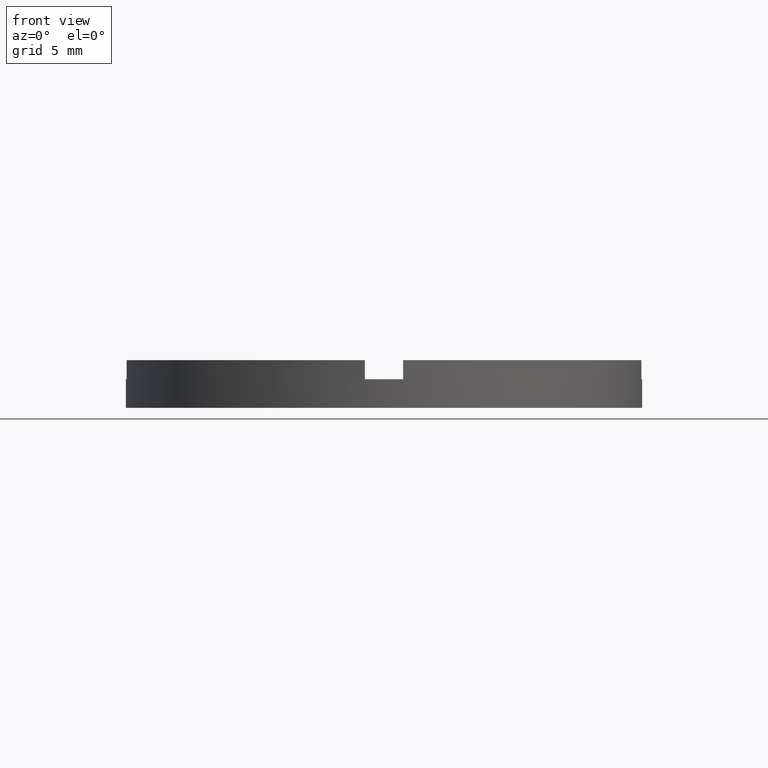
[diagram: clean part render]
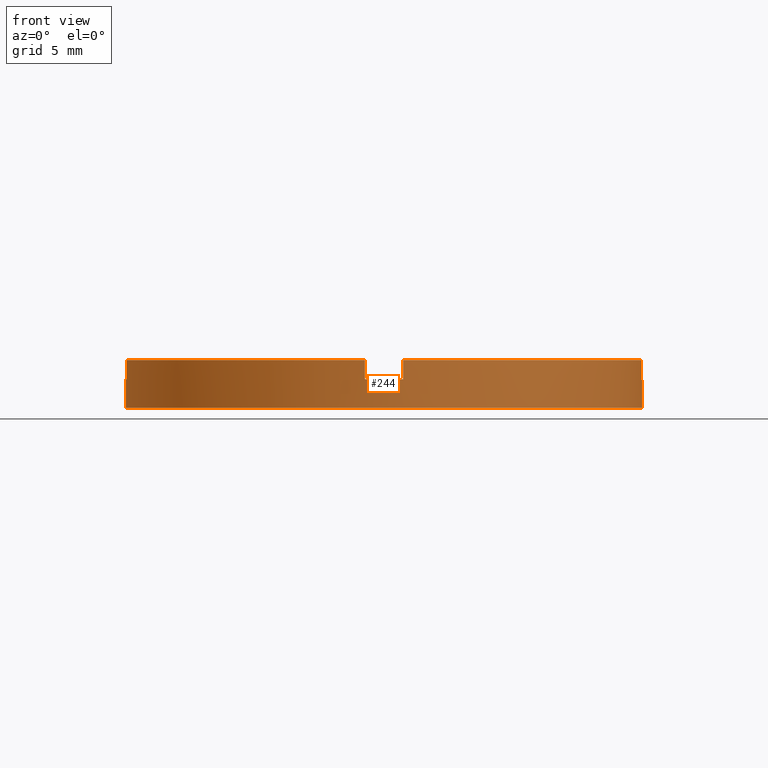
[diagram: same view with one face highlighted and labeled with its STEP entity id]
A machine part, front view. The second image highlights one B-rep face of the part: STEP entity #244.
In plain terms, the highlighted cylindrical surface (partial cylindrical patch) has radius 13.5 mm, axis along (-0, -0, -1).
Its self-contained STEP definition (entity closure, byte-faithful):
#1 = DIRECTION ( 'NONE',  ( -0.000000000000000000, -0.000000000000000000, -1.000000000000000000 ) ) ;
#4 = DIRECTION ( 'NONE',  ( 0.000000000000000000, 0.000000000000000000, 1.000000000000000000 ) ) ;
#9 = FACE_OUTER_BOUND ( 'NONE', #466, .T. ) ;
#12 = AXIS2_PLACEMENT_3D ( 'NONE', #343, #740, #346 ) ;
#24 = AXIS2_PLACEMENT_3D ( 'NONE', #70, #130, #438 ) ;
#27 = EDGE_CURVE ( 'NONE', #702, #669, #758, .T. ) ;
#41 = LINE ( 'NONE', #557, #318 ) ;
#45 = AXIS2_PLACEMENT_3D ( 'NONE', #299, #402, #309 ) ;
#46 = CARTESIAN_POINT ( 'NONE',  ( -1.000000000000163203, -13.46291201783624736, 2.500000000000000000 ) ) ;
#48 = CARTESIAN_POINT ( 'NONE',  ( 13.50000000000000000, 1.653273178848926867E-15, 2.500000000000000000 ) ) ;
#49 = DIRECTION ( 'NONE',  ( -0.000000000000000000, 0.000000000000000000, 1.000000000000000000 ) ) ;
#50 = CARTESIAN_POINT ( 'NONE',  ( 13.46291201783624736, -1.000000000000159650, 2.500000000000000000 ) ) ;
#52 = CARTESIAN_POINT ( 'NONE',  ( -13.50000000000000000, 0.000000000000000000, 1.500000000000000000 ) ) ;
#57 = CARTESIAN_POINT ( 'NONE',  ( 0.000000000000000000, 0.000000000000000000, 1.500000000000000000 ) ) ;
#59 = CARTESIAN_POINT ( 'NONE',  ( 13.50000000000000000, 1.653273178848926867E-15, 1.500000000000000000 ) ) ;
#68 = EDGE_CURVE ( 'NONE', #734, #427, #450, .T. ) ;
#70 = CARTESIAN_POINT ( 'NONE',  ( 0.000000000000000000, 0.000000000000000000, 0.000000000000000000 ) ) ;
#85 = EDGE_CURVE ( 'NONE', #717, #195, #686, .T. ) ;
#98 = EDGE_CURVE ( 'NONE', #734, #150, #178, .T. ) ;
#100 = CARTESIAN_POINT ( 'NONE',  ( -13.46291201783625802, -1.000000000000022649, 1.500000000000000000 ) ) ;
#101 = DIRECTION ( 'NONE',  ( 1.000000000000000000, 0.000000000000000000, 0.000000000000000000 ) ) ;
#104 = AXIS2_PLACEMENT_3D ( 'NONE', #608, #601, #679 ) ;
#128 = ORIENTED_EDGE ( 'NONE', *, *, #613, .T. ) ;
#130 = DIRECTION ( 'NONE',  ( 0.000000000000000000, 0.000000000000000000, 1.000000000000000000 ) ) ;
#150 = VERTEX_POINT ( 'NONE', #736 ) ;
#156 = DIRECTION ( 'NONE',  ( 0.000000000000000000, 0.000000000000000000, 1.000000000000000000 ) ) ;
#162 = VERTEX_POINT ( 'NONE', #361 ) ;
#166 = ORIENTED_EDGE ( 'NONE', *, *, #501, .T. ) ;
#168 = CARTESIAN_POINT ( 'NONE',  ( -13.46291201783625802, -1.000000000000022649, 2.500000000000000000 ) ) ;
#178 = CIRCLE ( 'NONE', #45, 13.50000000000000000 ) ;
#195 = VERTEX_POINT ( 'NONE', #507 ) ;
#208 = DIRECTION ( 'NONE',  ( 1.000000000000000000, 0.000000000000000000, 0.000000000000000000 ) ) ;
#229 = ORIENTED_EDGE ( 'NONE', *, *, #85, .T. ) ;
#233 = CARTESIAN_POINT ( 'NONE',  ( -13.50000000000000000, 0.000000000000000000, 0.000000000000000000 ) ) ;
#244 = ADVANCED_FACE ( 'NONE', ( #9 ), #526, .T. ) ;
#246 = LINE ( 'NONE', #48, #248 ) ;
#248 = VECTOR ( 'NONE', #1, 1000.000000000000000 ) ;
#250 = EDGE_CURVE ( 'NONE', #663, #195, #530, .T. ) ;
#253 = LINE ( 'NONE', #395, #768 ) ;
#299 = CARTESIAN_POINT ( 'NONE',  ( 0.000000000000000000, 0.000000000000000000, 2.500000000000000000 ) ) ;
#309 = DIRECTION ( 'NONE',  ( 1.000000000000000000, 0.000000000000000000, 0.000000000000000000 ) ) ;
#314 = CIRCLE ( 'NONE', #559, 13.50000000000000000 ) ;
#318 = VECTOR ( 'NONE', #598, 1000.000000000000000 ) ;
#328 = CARTESIAN_POINT ( 'NONE',  ( -13.46291201783625802, -1.000000000000022649, 2.500000000000000000 ) ) ;
#336 = CARTESIAN_POINT ( 'NONE',  ( 13.50000000000000000, 1.653273178848926867E-15, 0.000000000000000000 ) ) ;
#340 = EDGE_CURVE ( 'NONE', #729, #669, #246, .T. ) ;
#343 = CARTESIAN_POINT ( 'NONE',  ( 0.000000000000000000, 0.000000000000000000, 1.500000000000000000 ) ) ;
#345 = CARTESIAN_POINT ( 'NONE',  ( 0.9999999999998366862, -13.46291201783627045, 1.500000000000000000 ) ) ;
#346 = DIRECTION ( 'NONE',  ( 1.000000000000000000, 0.000000000000000000, 0.000000000000000000 ) ) ;
#361 = CARTESIAN_POINT ( 'NONE',  ( -1.000000000000163203, -13.46291201783624736, 1.500000000000000000 ) ) ;
#366 = CARTESIAN_POINT ( 'NONE',  ( 0.9999999999998366862, -13.46291201783627045, 2.500000000000000000 ) ) ;
#369 = ORIENTED_EDGE ( 'NONE', *, *, #580, .F. ) ;
#395 = CARTESIAN_POINT ( 'NONE',  ( -13.50000000000000000, 0.000000000000000000, 2.500000000000000000 ) ) ;
#402 = DIRECTION ( 'NONE',  ( 0.000000000000000000, 0.000000000000000000, 1.000000000000000000 ) ) ;
#411 = ORIENTED_EDGE ( 'NONE', *, *, #250, .F. ) ;
#413 = DIRECTION ( 'NONE',  ( -0.000000000000000000, -0.000000000000000000, -1.000000000000000000 ) ) ;
#423 = VECTOR ( 'NONE', #156, 1000.000000000000000 ) ;
#427 = VERTEX_POINT ( 'NONE', #100 ) ;
#438 = DIRECTION ( 'NONE',  ( 1.000000000000000000, 0.000000000000000000, 0.000000000000000000 ) ) ;
#439 = VERTEX_POINT ( 'NONE', #345 ) ;
#450 = LINE ( 'NONE', #168, #708 ) ;
#456 = ORIENTED_EDGE ( 'NONE', *, *, #593, .F. ) ;
#466 = EDGE_LOOP ( 'NONE', ( #697, #456, #229, #411, #128, #369, #660, #672, #640, #645, #166, #483 ) ) ;
#471 = EDGE_CURVE ( 'NONE', #162, #150, #506, .T. ) ;
#473 = VERTEX_POINT ( 'NONE', #52 ) ;
#481 = DIRECTION ( 'NONE',  ( -0.000000000000000000, -0.000000000000000000, -1.000000000000000000 ) ) ;
#483 = ORIENTED_EDGE ( 'NONE', *, *, #27, .T. ) ;
#501 = EDGE_CURVE ( 'NONE', #473, #702, #253, .T. ) ;
#504 = VECTOR ( 'NONE', #4, 1000.000000000000000 ) ;
#506 = LINE ( 'NONE', #46, #504 ) ;
#507 = CARTESIAN_POINT ( 'NONE',  ( 13.46291201783624736, -1.000000000000159650, 2.500000000000000000 ) ) ;
#520 = CIRCLE ( 'NONE', #12, 13.50000000000000000 ) ;
#526 = CYLINDRICAL_SURFACE ( 'NONE', #104, 13.50000000000000000 ) ;
#530 = CIRCLE ( 'NONE', #742, 13.50000000000000000 ) ;
#549 = CARTESIAN_POINT ( 'NONE',  ( 0.000000000000000000, 0.000000000000000000, 1.500000000000000000 ) ) ;
#557 = CARTESIAN_POINT ( 'NONE',  ( 0.9999999999998366862, -13.46291201783627045, 2.500000000000000000 ) ) ;
#559 = AXIS2_PLACEMENT_3D ( 'NONE', #549, #595, #745 ) ;
#561 = EDGE_CURVE ( 'NONE', #473, #427, #520, .T. ) ;
#572 = CIRCLE ( 'NONE', #579, 13.50000000000000000 ) ;
#579 = AXIS2_PLACEMENT_3D ( 'NONE', #57, #49, #208 ) ;
#580 = EDGE_CURVE ( 'NONE', #162, #439, #572, .T. ) ;
#593 = EDGE_CURVE ( 'NONE', #717, #729, #314, .T. ) ;
#595 = DIRECTION ( 'NONE',  ( 0.000000000000000000, 0.000000000000000000, 1.000000000000000000 ) ) ;
#598 = DIRECTION ( 'NONE',  ( -0.000000000000000000, -0.000000000000000000, -1.000000000000000000 ) ) ;
#601 = DIRECTION ( 'NONE',  ( -0.000000000000000000, -0.000000000000000000, -1.000000000000000000 ) ) ;
#608 = CARTESIAN_POINT ( 'NONE',  ( 0.000000000000000000, 0.000000000000000000, 2.500000000000000000 ) ) ;
#613 = EDGE_CURVE ( 'NONE', #663, #439, #41, .T. ) ;
#640 = ORIENTED_EDGE ( 'NONE', *, *, #68, .T. ) ;
#645 = ORIENTED_EDGE ( 'NONE', *, *, #561, .F. ) ;
#660 = ORIENTED_EDGE ( 'NONE', *, *, #471, .T. ) ;
#663 = VERTEX_POINT ( 'NONE', #366 ) ;
#664 = CARTESIAN_POINT ( 'NONE',  ( 0.000000000000000000, 0.000000000000000000, 2.500000000000000000 ) ) ;
#669 = VERTEX_POINT ( 'NONE', #336 ) ;
#672 = ORIENTED_EDGE ( 'NONE', *, *, #98, .F. ) ;
#679 = DIRECTION ( 'NONE',  ( -1.000000000000000000, 0.000000000000000000, 0.000000000000000000 ) ) ;
#686 = LINE ( 'NONE', #50, #423 ) ;
#697 = ORIENTED_EDGE ( 'NONE', *, *, #340, .F. ) ;
#702 = VERTEX_POINT ( 'NONE', #233 ) ;
#708 = VECTOR ( 'NONE', #413, 1000.000000000000000 ) ;
#717 = VERTEX_POINT ( 'NONE', #747 ) ;
#729 = VERTEX_POINT ( 'NONE', #59 ) ;
#734 = VERTEX_POINT ( 'NONE', #328 ) ;
#736 = CARTESIAN_POINT ( 'NONE',  ( -1.000000000000163203, -13.46291201783624736, 2.500000000000000000 ) ) ;
#740 = DIRECTION ( 'NONE',  ( 0.000000000000000000, 0.000000000000000000, 1.000000000000000000 ) ) ;
#742 = AXIS2_PLACEMENT_3D ( 'NONE', #664, #752, #101 ) ;
#745 = DIRECTION ( 'NONE',  ( 1.000000000000000000, 0.000000000000000000, 0.000000000000000000 ) ) ;
#747 = CARTESIAN_POINT ( 'NONE',  ( 13.46291201783624736, -1.000000000000159650, 1.500000000000000000 ) ) ;
#752 = DIRECTION ( 'NONE',  ( 0.000000000000000000, 0.000000000000000000, 1.000000000000000000 ) ) ;
#758 = CIRCLE ( 'NONE', #24, 13.50000000000000000 ) ;
#768 = VECTOR ( 'NONE', #481, 1000.000000000000000 ) ;